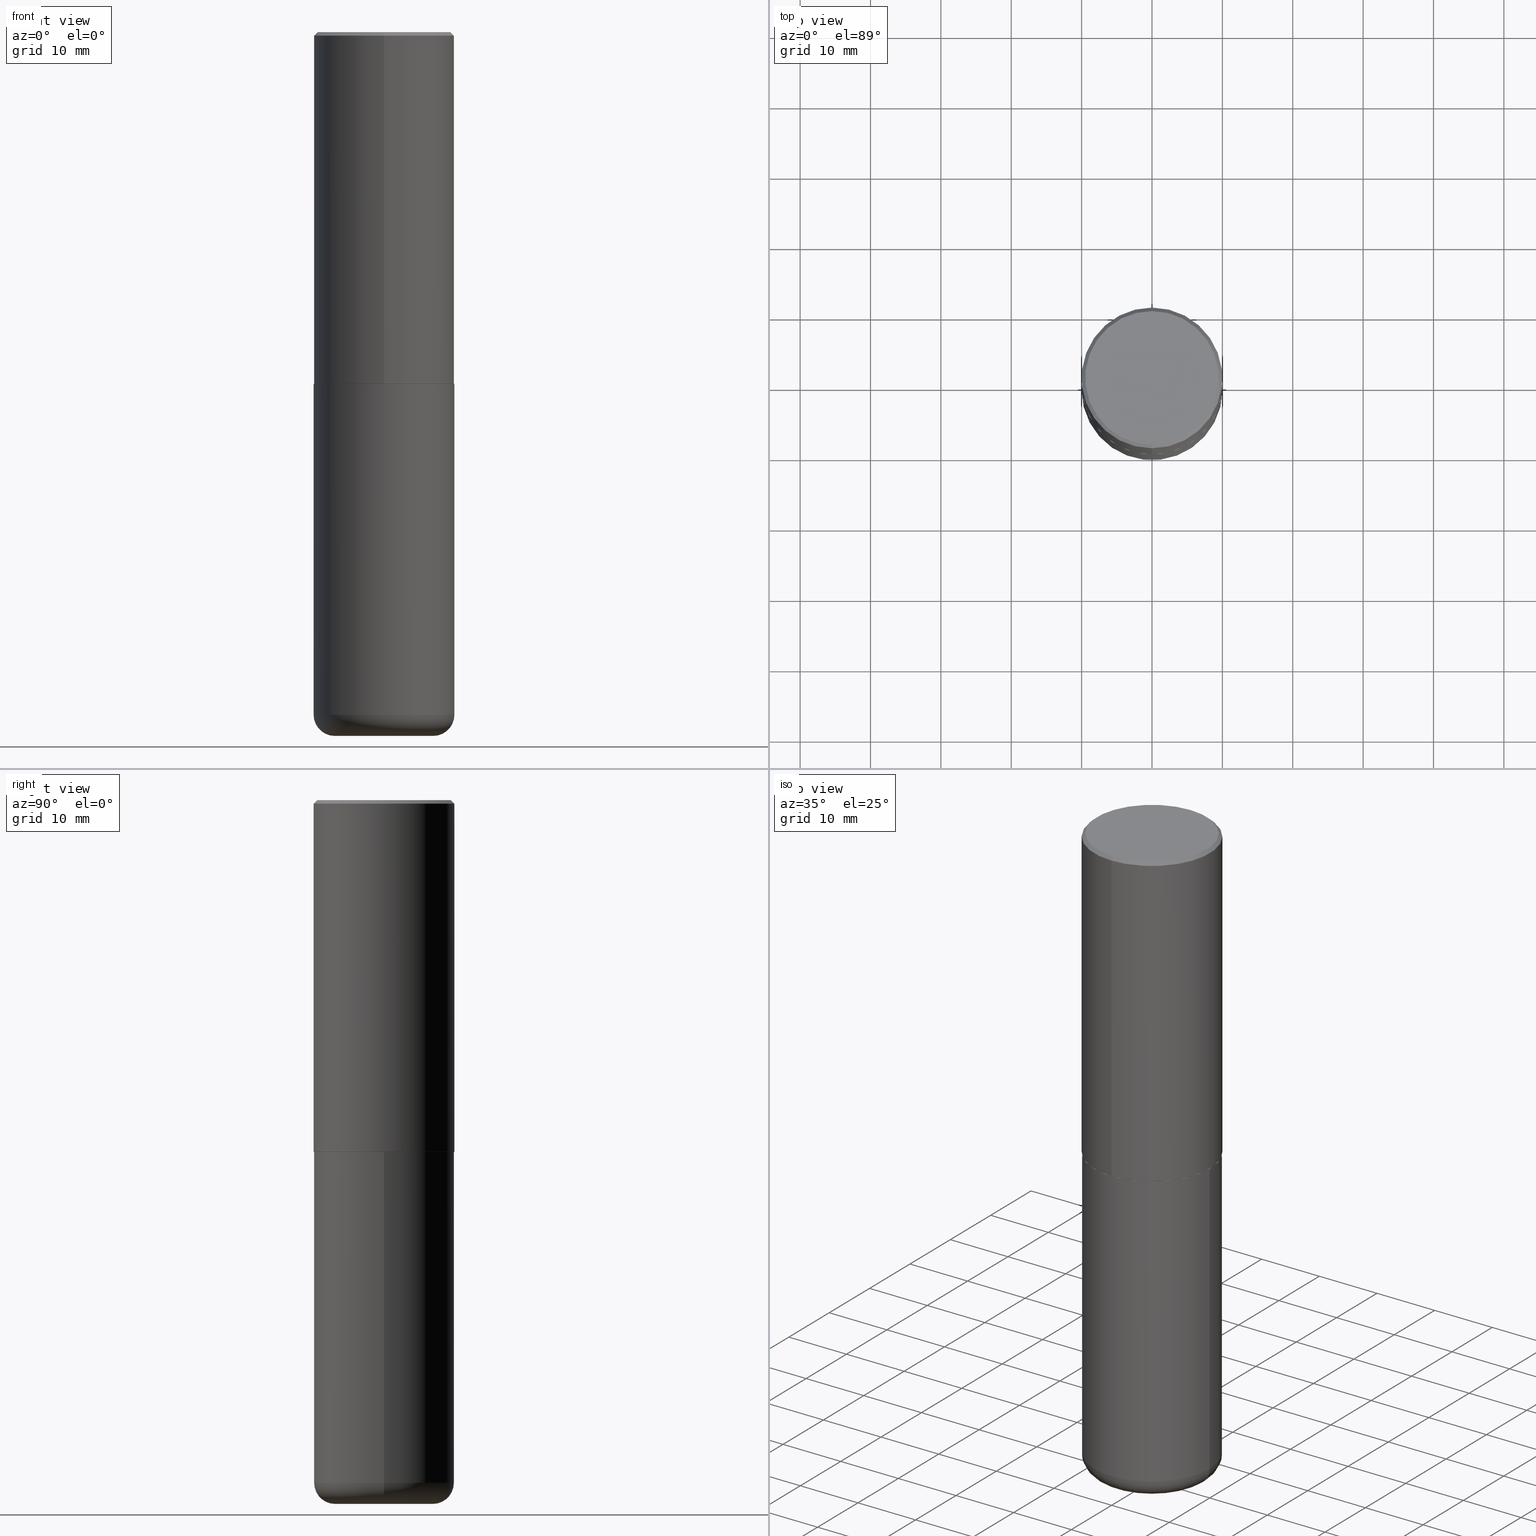
[diagram: canonical four-view strip — front | top / right | iso, engineering-drawing reading convention]
A machine part, canonical four-view strip (front | top / right | iso — engineering-drawing reading convention). The complete STEP part file that produces these views, byte-faithful:
ISO-10303-21;
HEADER;
FILE_DESCRIPTION (( 'STEP AP203' ),
    '1' );
FILE_NAME ('74648.STEP',
    '2024-03-06T15:50:53',
    ( '' ),
    ( '' ),
    'SwSTEP 2.0',
    'SolidWorks 2023',
    '' );
FILE_SCHEMA (( 'CONFIG_CONTROL_DESIGN' ));
ENDSEC;

DATA;
#1 = ORIENTED_EDGE ( 'NONE', *, *, #263, .T. ) ;
#2 = ADVANCED_FACE ( 'NONE', ( #123 ), #378, .F. ) ;
#3 = LINE ( 'NONE', #74, #402 ) ;
#4 = FACE_OUTER_BOUND ( 'NONE', #84, .T. ) ;
#5 = AXIS2_PLACEMENT_3D ( 'NONE', #409, #278, #216 ) ;
#6 = LOCAL_TIME ( 10, 50, 53.00000000000000000, #256 ) ;
#7 = ORIENTED_EDGE ( 'NONE', *, *, #218, .F. ) ;
#8 = PRODUCT_RELATED_PRODUCT_CATEGORY ( 'detail', '', ( #351 ) ) ;
#9 = CARTESIAN_POINT ( 'NONE',  ( 2.797406750687515181E-15, 0.3937000000000001609, -1.373224176831512065E-15 ) ) ;
#10 = DIRECTION ( 'NONE',  ( 1.000000000000000000, -6.982962677686268288E-15, 4.883557194083112901E-29 ) ) ;
#11 = AXIS2_PLACEMENT_3D ( 'NONE', #24, #377, #340 ) ;
#12 = ADVANCED_FACE ( 'NONE', ( #4 ), #156, .T. ) ;
#13 = CARTESIAN_POINT ( 'NONE',  ( 9.339000823940418668E-29, -1.333361808490808928E-14, -3.818900000000000183 ) ) ;
#14 = EDGE_LOOP ( 'NONE', ( #304, #341, #73, #308 ) ) ;
#15 = CARTESIAN_POINT ( 'NONE',  ( 4.818695749097162682E-29, -6.866120884157559141E-15, -1.968500000000000361 ) ) ;
#16 = ORIENTED_EDGE ( 'NONE', *, *, #195, .T. ) ;
#17 = CARTESIAN_POINT ( 'NONE',  ( 4.816247846760815671E-29, -6.862632887772413316E-15, -1.967500000000000027 ) ) ;
#18 = AXIS2_PLACEMENT_3D ( 'NONE', #175, #148, #54 ) ;
#19 = DIRECTION ( 'NONE',  ( -6.982962677686265133E-15, -1.000000000000000000, 3.478288761986584267E-15 ) ) ;
#20 = DIRECTION ( 'NONE',  ( -2.447902336346030930E-29, 3.487996385144809755E-15, 1.000000000000000000 ) ) ;
#21 = CALENDAR_DATE ( 2024, 6, 3 ) ;
#22 = DIRECTION ( 'NONE',  ( -2.447902336346030930E-29, 3.487996385144809755E-15, 1.000000000000000000 ) ) ;
#23 = AXIS2_PLACEMENT_3D ( 'NONE', #15, #40, #43 ) ;
#24 = CARTESIAN_POINT ( 'NONE',  ( 2.609533152651357803E-15, 0.3737000000000000322, -1.336129256402902755E-15 ) ) ;
#25 = EDGE_CURVE ( 'NONE', #173, #300, #34, .T. ) ;
#26 = DIRECTION ( 'NONE',  ( 2.447902336346030930E-29, -3.487996385144809755E-15, -1.000000000000000000 ) ) ;
#27 = SECURITY_CLASSIFICATION_LEVEL ( 'unclassified' ) ;
#28 = ORIENTED_EDGE ( 'NONE', *, *, #96, .F. ) ;
#29 = CARTESIAN_POINT ( 'NONE',  ( 4.813905344975441835E-29, -6.872981015512731707E-15, -1.968500000000000139 ) ) ;
#30 = APPLICATION_PROTOCOL_DEFINITION ( 'international standard', 'config_control_design', 1994, #184 ) ;
#31 = EDGE_CURVE ( 'NONE', #228, #99, #3, .T. ) ;
#32 = DIRECTION ( 'NONE',  ( 0.000000000000000000, 0.000000000000000000, 1.000000000000000000 ) ) ;
#33 = AXIS2_PLACEMENT_3D ( 'NONE', #249, #22, #185 ) ;
#34 = LINE ( 'NONE', #286, #205 ) ;
#35 = ORIENTED_EDGE ( 'NONE', *, *, #103, .T. ) ;
#36 = PERSON_AND_ORGANIZATION ( #257, #321 ) ;
#37 = DIRECTION ( 'NONE',  ( 6.982962677686265133E-15, 1.000000000000000000, -3.491137977679279424E-15 ) ) ;
#38 = AXIS2_PLACEMENT_3D ( 'NONE', #331, #70, #197 ) ;
#39 = APPROVAL ( #385, 'UNSPECIFIED' ) ;
#40 = DIRECTION ( 'NONE',  ( -2.447902336346030930E-29, 3.487996385144809755E-15, 1.000000000000000000 ) ) ;
#41 = CARTESIAN_POINT ( 'NONE',  ( -0.2756000000000000116, -1.137536230515325427E-14, -3.818900000000000183 ) ) ;
#42 = CC_DESIGN_PERSON_AND_ORGANIZATION_ASSIGNMENT ( #415, #183, ( #111 ) ) ;
#43 = DIRECTION ( 'NONE',  ( -6.982962677686265133E-15, -1.000000000000000000, 3.478288761986584267E-15 ) ) ;
#44 = AXIS2_PLACEMENT_3D ( 'NONE', #400, #177, #299 ) ;
#45 = ORIENTED_EDGE ( 'NONE', *, *, #204, .T. ) ;
#46 = DIRECTION ( 'NONE',  ( -1.000000000000000000, 7.105427357601005014E-15, 0.000000000000000000 ) ) ;
#47 = VERTEX_POINT ( 'NONE', #102 ) ;
#48 = CARTESIAN_POINT ( 'NONE',  ( -0.2756000000000000116, -1.116195879274560421E-14, -3.937000000000000277 ) ) ;
#49 = ORIENTED_EDGE ( 'NONE', *, *, #31, .F. ) ;
#50 = DIRECTION ( 'NONE',  ( 1.000000000000000000, -6.982962677686267499E-15, 0.000000000000000000 ) ) ;
#51 = ADVANCED_FACE ( 'NONE', ( #361 ), #265, .F. ) ;
#52 = ORIENTED_EDGE ( 'NONE', *, *, #122, .T. ) ;
#53 = CC_DESIGN_APPROVAL ( #193, ( #152 ) ) ;
#54 = DIRECTION ( 'NONE',  ( 6.982962677686265133E-15, 1.000000000000000000, -3.491137977679279424E-15 ) ) ;
#55 = CALENDAR_DATE ( 2024, 6, 3 ) ;
#56 = CARTESIAN_POINT ( 'NONE',  ( -2.700978061722651252E-15, -0.3937000000000001054, -0.01999999999999870978 ) ) ;
#57 = PERSON_AND_ORGANIZATION ( #257, #321 ) ;
#58 = ADVANCED_FACE ( 'NONE', ( #325 ), #155, .T. ) ;
#59 = DIRECTION ( 'NONE',  ( 1.000000000000000000, -6.982962677686265133E-15, 0.000000000000000000 ) ) ;
#60 = AXIS2_PLACEMENT_3D ( 'NONE', #306, #92, #179 ) ;
#61 = EDGE_LOOP ( 'NONE', ( #243, #225, #264, #82 ) ) ;
#62 = CARTESIAN_POINT ( 'NONE',  ( 4.895804672692082949E-31, -6.975992770289649092E-17, -0.02000000000000008715 ) ) ;
#63 = APPROVAL_STATUS ( 'not_yet_approved' ) ;
#64 = EDGE_LOOP ( 'NONE', ( #373, #337, #68, #206 ) ) ;
#65 = PERSON_AND_ORGANIZATION ( #257, #321 ) ;
#66 = PERSON_AND_ORGANIZATION ( #257, #321 ) ;
#67 = AXIS2_PLACEMENT_3D ( 'NONE', #396, #112, #151 ) ;
#68 = ORIENTED_EDGE ( 'NONE', *, *, #31, .T. ) ;
#69 = MECHANICAL_CONTEXT ( 'NONE', #289, 'mechanical' ) ;
#70 = DIRECTION ( 'NONE',  ( 2.438088387897960049E-29, -3.491481338843145188E-15, -1.000000000000000000 ) ) ;
#71 = VERTEX_POINT ( 'NONE', #413 ) ;
#72 = CC_DESIGN_PERSON_AND_ORGANIZATION_ASSIGNMENT ( #224, #352, ( #111 ) ) ;
#73 = ORIENTED_EDGE ( 'NONE', *, *, #375, .T. ) ;
#74 = CARTESIAN_POINT ( 'NONE',  ( 0.3937000000000000499, -2.749192406205083217E-15, 1.919750796630860172E-29 ) ) ;
#75 = AXIS2_PLACEMENT_3D ( 'NONE', #266, #170, #203 ) ;
#76 = DIRECTION ( 'NONE',  ( -2.445468806185136877E-29, 3.491481338843145188E-15, 1.000000000000000000 ) ) ;
#77 = CYLINDRICAL_SURFACE ( 'NONE', #75, 0.3937000000000001609 ) ;
#78 = DIRECTION ( 'NONE',  ( 4.937700262164543309E-15, 0.7071067811865444641, -0.7071067811865503483 ) ) ;
#79 = ORIENTED_EDGE ( 'NONE', *, *, #362, .F. ) ;
#80 = APPROVAL_PERSON_ORGANIZATION ( #66, #344, #319 ) ;
#81 = CARTESIAN_POINT ( 'NONE',  ( 9.627810689950883669E-29, -1.374596203102546341E-14, -3.937000000000000277 ) ) ;
#82 = ORIENTED_EDGE ( 'NONE', *, *, #283, .F. ) ;
#83 = DIRECTION ( 'NONE',  ( -6.982962677686265133E-15, -1.000000000000000000, 3.491137977679279424E-15 ) ) ;
#84 = EDGE_LOOP ( 'NONE', ( #386, #230, #219, #16 ) ) ;
#85 = CARTESIAN_POINT ( 'NONE',  ( 4.816247846760815671E-29, -6.862632887772413316E-15, -1.967500000000000027 ) ) ;
#86 = AXIS2_PLACEMENT_3D ( 'NONE', #29, #153, #59 ) ;
#87 = DATE_TIME_ROLE ( 'classification_date' ) ;
#88 = DIRECTION ( 'NONE',  ( -2.445468806185136597E-29, 3.491481338843145583E-15, 1.000000000000000000 ) ) ;
#89 = EDGE_CURVE ( 'NONE', #401, #71, #209, .T. ) ;
#90 = FACE_OUTER_BOUND ( 'NONE', #239, .T. ) ;
#91 = DATE_AND_TIME ( #21, #200 ) ;
#92 = DIRECTION ( 'NONE',  ( 2.438088387897960049E-29, -3.491481338843145188E-15, -1.000000000000000000 ) ) ;
#93 = SHAPE_DEFINITION_REPRESENTATION ( #188, #163 ) ;
#94 = CIRCLE ( 'NONE', #250, 0.1180999999999999966 ) ;
#95 = CARTESIAN_POINT ( 'NONE',  ( -2.749192406205036674E-15, -0.3937000000000070998, -1.967499999999998694 ) ) ;
#96 = EDGE_CURVE ( 'NONE', #355, #401, #369, .T. ) ;
#97 = DATE_AND_TIME ( #55, #383 ) ;
#98 = EDGE_LOOP ( 'NONE', ( #45, #143, #330, #104 ) ) ;
#99 = VERTEX_POINT ( 'NONE', #169 ) ;
#100 = DATE_AND_TIME ( #357, #290 ) ;
#101 = AXIS2_PLACEMENT_3D ( 'NONE', #119, #109, #336 ) ;
#102 = CARTESIAN_POINT ( 'NONE',  ( -0.3937000000000000499, -1.053621133422057529E-14, -3.818900000000000183 ) ) ;
#103 = EDGE_CURVE ( 'NONE', #150, #47, #94, .T. ) ;
#104 = ORIENTED_EDGE ( 'NONE', *, *, #324, .F. ) ;
#105 = DIRECTION ( 'NONE',  ( -2.445468806185136597E-29, 3.491481338843145583E-15, 1.000000000000000000 ) ) ;
#106 = VERTEX_POINT ( 'NONE', #370 ) ;
#107 = MANIFOLD_SOLID_BREP ( 'Body-Move/Copy2[2]', #234 ) ;
#108 = EDGE_CURVE ( 'NONE', #150, #291, #295, .T. ) ;
#109 = DIRECTION ( 'NONE',  ( -2.445468806185136597E-29, 3.491481338843145583E-15, 1.000000000000000000 ) ) ;
#110 = CIRCLE ( 'NONE', #33, 0.3737000000000000322 ) ;
#111 = PRODUCT_DEFINITION_FORMATION_WITH_SPECIFIED_SOURCE ( 'ANY', '', #351, .NOT_KNOWN. ) ;
#112 = DIRECTION ( 'NONE',  ( -2.447902336346030930E-29, 3.487996385144809755E-15, 1.000000000000000000 ) ) ;
#113 = DIRECTION ( 'NONE',  ( -2.447902336346030930E-29, 3.487996385144809360E-15, 1.000000000000000000 ) ) ;
#114 = VERTEX_POINT ( 'NONE', #294 ) ;
#115 = DIRECTION ( 'NONE',  ( -2.445468806185136597E-29, 3.491481338843145583E-15, 1.000000000000000000 ) ) ;
#116 = AXIS2_PLACEMENT_3D ( 'NONE', #81, #115, #236 ) ;
#117 = AXIS2_PLACEMENT_3D ( 'NONE', #407, #348, #19 ) ;
#118 = ORIENTED_EDGE ( 'NONE', *, *, #267, .T. ) ;
#119 = CARTESIAN_POINT ( 'NONE',  ( 9.339000823940418668E-29, -1.333361808490808928E-14, -3.818900000000000183 ) ) ;
#120 = FACE_OUTER_BOUND ( 'NONE', #254, .T. ) ;
#121 = CARTESIAN_POINT ( 'NONE',  ( 0.2756000000000000116, -1.567046654499579837E-14, -3.937000000000000277 ) ) ;
#122 = EDGE_CURVE ( 'NONE', #106, #99, #273, .T. ) ;
#123 = FACE_OUTER_BOUND ( 'NONE', #262, .T. ) ;
#124 = VECTOR ( 'NONE', #76, 39.37007874015748143 ) ;
#125 = APPROVAL_DATE_TIME ( #353, #39 ) ;
#126 = CC_DESIGN_SECURITY_CLASSIFICATION ( #152, ( #111 ) ) ;
#127 = PLANE ( 'NONE',  #11 ) ;
#128 = DIRECTION ( 'NONE',  ( 1.000000000000000000, -6.982962677686273021E-15, 0.000000000000000000 ) ) ;
#129 = PERSON_AND_ORGANIZATION ( #257, #321 ) ;
#130 = DIRECTION ( 'NONE',  ( 1.000000000000000000, -6.982962677686265922E-15, 4.876176775795935793E-29 ) ) ;
#131 = CONICAL_SURFACE ( 'NONE', #18, 0.3937000000000000499, 0.7853981633974476129 ) ;
#132 = ADVANCED_FACE ( 'NONE', ( #372 ), #411, .T. ) ;
#133 = AXIS2_PLACEMENT_3D ( 'NONE', #323, #32, #226 ) ;
#134 = ORIENTED_EDGE ( 'NONE', *, *, #332, .T. ) ;
#135 = COORDINATED_UNIVERSAL_TIME_OFFSET ( 5, 0, .BEHIND. ) ;
#136 = ORIENTED_EDGE ( 'NONE', *, *, #362, .T. ) ;
#137 = PERSON_AND_ORGANIZATION_ROLE ( 'design_owner' ) ;
#138 = APPROVAL_ROLE ( '' ) ;
#139 = CC_DESIGN_PERSON_AND_ORGANIZATION_ASSIGNMENT ( #57, #354, ( #152 ) ) ;
#140 = EDGE_LOOP ( 'NONE', ( #232, #270, #399, #49 ) ) ;
#141 = CONICAL_SURFACE ( 'NONE', #5, 0.3926999999999999935, 0.7853981633974141952 ) ;
#142 = CARTESIAN_POINT ( 'NONE',  ( 0.000000000000000000, 0.000000000000000000, 0.000000000000000000 ) ) ;
#143 = ORIENTED_EDGE ( 'NONE', *, *, #218, .T. ) ;
#144 = FACE_OUTER_BOUND ( 'NONE', #384, .T. ) ;
#145 = DIRECTION ( 'NONE',  ( -2.447902336346030930E-29, 3.487996385144809755E-15, 1.000000000000000000 ) ) ;
#146 = AXIS2_PLACEMENT_3D ( 'NONE', #85, #20, #381 ) ;
#147 = ORIENTED_EDGE ( 'NONE', *, *, #25, .F. ) ;
#148 = DIRECTION ( 'NONE',  ( 2.447902336346030930E-29, -3.487996385144809755E-15, -1.000000000000000000 ) ) ;
#149 = ADVANCED_FACE ( 'NONE', ( #302 ), #77, .T. ) ;
#150 = VERTEX_POINT ( 'NONE', #48 ) ;
#151 = DIRECTION ( 'NONE',  ( -6.982962677686265133E-15, -1.000000000000000000, 3.478288761986584267E-15 ) ) ;
#152 = SECURITY_CLASSIFICATION ( '', '', #27 ) ;
#153 = DIRECTION ( 'NONE',  ( -2.445468806185136597E-29, 3.491481338843145583E-15, 1.000000000000000000 ) ) ;
#154 = CARTESIAN_POINT ( 'NONE',  ( 9.339000823940418668E-29, -1.333361808490808928E-14, -3.818900000000000183 ) ) ;
#155 = CYLINDRICAL_SURFACE ( 'NONE', #363, 0.3937000000000000499 ) ;
#156 = CONICAL_SURFACE ( 'NONE', #358, 0.3937000000000000499, 0.7853981633974476129 ) ;
#157 = LINE ( 'NONE', #248, #240 ) ;
#158 = CARTESIAN_POINT ( 'NONE',  ( 2.679362779428220707E-15, 0.3737000000000000322, -1.368794263677189641E-15 ) ) ;
#159 = EDGE_CURVE ( 'NONE', #114, #173, #284, .T. ) ;
#160 = ORIENTED_EDGE ( 'NONE', *, *, #293, .F. ) ;
#161 = CALENDAR_DATE ( 2024, 6, 3 ) ;
#162 = EDGE_CURVE ( 'NONE', #47, #106, #269, .T. ) ;
#163 = ADVANCED_BREP_SHAPE_REPRESENTATION ( '74648', ( #259, #107, #133 ), #214 ) ;
#164 = LENGTH_MEASURE_WITH_UNIT ( LENGTH_MEASURE( 0.02539999999999999897 ), #276 );
#165 = VECTOR ( 'NONE', #113, 39.37007874015748143 ) ;
#166 = AXIS2_PLACEMENT_3D ( 'NONE', #380, #414, #189 ) ;
#167 = CARTESIAN_POINT ( 'NONE',  ( 4.895804672692082949E-31, -6.975992770289649092E-17, -0.02000000000000008715 ) ) ;
#168 = DIRECTION ( 'NONE',  ( -4.851104656540959542E-15, -0.7071067811865493491, -0.7071067811865454633 ) ) ;
#169 = CARTESIAN_POINT ( 'NONE',  ( 0.3937000000000000499, -9.622173421717814924E-15, -1.968500000000000139 ) ) ;
#170 = DIRECTION ( 'NONE',  ( -2.447902336346030930E-29, 3.487996385144809755E-15, 1.000000000000000000 ) ) ;
#171 = CIRCLE ( 'NONE', #368, 0.3937000000000000499 ) ;
#172 = AXIS2_PLACEMENT_3D ( 'NONE', #62, #192, #318 ) ;
#173 = VERTEX_POINT ( 'NONE', #297 ) ;
#174 = EDGE_CURVE ( 'NONE', #355, #251, #333, .T. ) ;
#175 = CARTESIAN_POINT ( 'NONE',  ( 4.895804672692082949E-31, -6.975992770289649092E-17, -0.02000000000000008715 ) ) ;
#176 = EDGE_LOOP ( 'NONE', ( #7, #367, #392, #389 ) ) ;
#177 = DIRECTION ( 'NONE',  ( -2.447902336346030930E-29, 3.487996385144809755E-15, 1.000000000000000000 ) ) ;
#178 = EDGE_LOOP ( 'NONE', ( #118, #52 ) ) ;
#179 = DIRECTION ( 'NONE',  ( -1.000000000000000000, 6.982962677686265922E-15, -4.876176775795935793E-29 ) ) ;
#180 = AXIS2_PLACEMENT_3D ( 'NONE', #238, #271, #10 ) ;
#181 = ORIENTED_EDGE ( 'NONE', *, *, #204, .F. ) ;
#182 = CC_DESIGN_PERSON_AND_ORGANIZATION_ASSIGNMENT ( #36, #387, ( #279 ) ) ;
#183 = PERSON_AND_ORGANIZATION_ROLE ( 'creator' ) ;
#184 = APPLICATION_CONTEXT ( 'configuration controlled 3d designs of mechanical parts and assemblies' ) ;
#185 = DIRECTION ( 'NONE',  ( -6.982962677686265922E-15, -1.000000000000000000, 3.487996385144809755E-15 ) ) ;
#186 = APPROVAL_ROLE ( '' ) ;
#187 = FACE_OUTER_BOUND ( 'NONE', #140, .T. ) ;
#188 = PRODUCT_DEFINITION_SHAPE ( 'NONE', 'NONE',  #279 ) ;
#189 = DIRECTION ( 'NONE',  ( 1.000000000000000000, -6.982962677686265922E-15, 0.000000000000000000 ) ) ;
#190 = AXIS2_PLACEMENT_3D ( 'NONE', #312, #309, #130 ) ;
#191 = TOROIDAL_SURFACE ( 'NONE', #101, 0.2756000000000000116, 0.1181000000000000105 ) ;
#192 = DIRECTION ( 'NONE',  ( -2.447902336346030930E-29, 3.487996385144809755E-15, 1.000000000000000000 ) ) ;
#193 = APPROVAL ( #215, 'UNSPECIFIED' ) ;
#194 =( NAMED_UNIT ( * ) SI_UNIT ( $, .STERADIAN. ) SOLID_ANGLE_UNIT ( ) );
#195 = EDGE_CURVE ( 'NONE', #71, #251, #171, .T. ) ;
#196 = AXIS2_PLACEMENT_3D ( 'NONE', #154, #88, #50 ) ;
#197 = DIRECTION ( 'NONE',  ( -1.000000000000000000, 6.982962677686265922E-15, -4.876176775795935793E-29 ) ) ;
#198 = VERTEX_POINT ( 'NONE', #365 ) ;
#199 = UNCERTAINTY_MEASURE_WITH_UNIT (LENGTH_MEASURE( 1.000000000000000082E-05 ), #417, 'distance_accuracy_value', 'NONE');
#200 = LOCAL_TIME ( 10, 50, 53.00000000000000000, #408 ) ;
#201 = EDGE_CURVE ( 'NONE', #47, #228, #305, .T. ) ;
#202 = CARTESIAN_POINT ( 'NONE',  ( 4.813905344975441835E-29, -6.872981015512731707E-15, -1.968500000000000139 ) ) ;
#203 = DIRECTION ( 'NONE',  ( -6.982962677686265922E-15, -1.000000000000000000, 3.487996385144809360E-15 ) ) ;
#204 = EDGE_CURVE ( 'NONE', #300, #198, #418, .T. ) ;
#205 = VECTOR ( 'NONE', #258, 39.37007874015748854 ) ;
#206 = ORIENTED_EDGE ( 'NONE', *, *, #122, .F. ) ;
#207 = DIRECTION ( 'NONE',  ( 1.000000000000000000, -6.982962677686265133E-15, 0.000000000000000000 ) ) ;
#208 = ORIENTED_EDGE ( 'NONE', *, *, #89, .F. ) ;
#209 = LINE ( 'NONE', #395, #280 ) ;
#210 = EDGE_CURVE ( 'NONE', #173, #114, #349, .T. ) ;
#211 = ORIENTED_EDGE ( 'NONE', *, *, #398, .T. ) ;
#212 = DIRECTION ( 'NONE',  ( -6.982962677686265922E-15, -1.000000000000000000, 3.487996385144809360E-15 ) ) ;
#213 = AXIS2_PLACEMENT_3D ( 'NONE', #13, #397, #292 ) ;
#214 =( GEOMETRIC_REPRESENTATION_CONTEXT ( 3 ) GLOBAL_UNCERTAINTY_ASSIGNED_CONTEXT ( ( #199 ) ) GLOBAL_UNIT_ASSIGNED_CONTEXT ( ( #417, #252, #194 ) ) REPRESENTATION_CONTEXT ( 'NONE', 'WORKASPACE' ) );
#215 = APPROVAL_STATUS ( 'not_yet_approved' ) ;
#216 = DIRECTION ( 'NONE',  ( -6.982962677686265133E-15, -1.000000000000000000, 3.478288761986584267E-15 ) ) ;
#217 = PLANE ( 'NONE',  #60 ) ;
#218 = EDGE_CURVE ( 'NONE', #198, #71, #274, .T. ) ;
#219 = ORIENTED_EDGE ( 'NONE', *, *, #89, .T. ) ;
#220 = FACE_OUTER_BOUND ( 'NONE', #61, .T. ) ;
#221 = CLOSED_SHELL ( 'NONE', ( #253, #132, #51, #58, #227, #338 ) ) ;
#222 = AXIS2_PLACEMENT_3D ( 'NONE', #313, #282, #128 ) ;
#223 = CALENDAR_DATE ( 2024, 6, 3 ) ;
#224 = PERSON_AND_ORGANIZATION ( #257, #321 ) ;
#225 = ORIENTED_EDGE ( 'NONE', *, *, #159, .T. ) ;
#226 = DIRECTION ( 'NONE',  ( 1.000000000000000000, 0.000000000000000000, 0.000000000000000000 ) ) ;
#227 = ADVANCED_FACE ( 'NONE', ( #404 ), #191, .T. ) ;
#228 = VERTEX_POINT ( 'NONE', #366 ) ;
#229 = DATE_AND_TIME ( #161, #275 ) ;
#230 = ORIENTED_EDGE ( 'NONE', *, *, #263, .F. ) ;
#231 = ORIENTED_EDGE ( 'NONE', *, *, #210, .T. ) ;
#232 = ORIENTED_EDGE ( 'NONE', *, *, #293, .T. ) ;
#233 = ADVANCED_FACE ( 'NONE', ( #144 ), #131, .T. ) ;
#234 = CLOSED_SHELL ( 'NONE', ( #311, #237, #233, #12, #149, #388, #2, #303 ) ) ;
#235 = CARTESIAN_POINT ( 'NONE',  ( -0.3937000000000000499, 2.797406750687514786E-15, -1.936584745033356735E-29 ) ) ;
#236 = DIRECTION ( 'NONE',  ( 1.000000000000000000, -6.982962677686265922E-15, 0.000000000000000000 ) ) ;
#237 = ADVANCED_FACE ( 'NONE', ( #246 ), #416, .T. ) ;
#238 = CARTESIAN_POINT ( 'NONE',  ( 9.339000823940418668E-29, -1.333361808490808928E-14, -3.818900000000000183 ) ) ;
#239 = EDGE_LOOP ( 'NONE', ( #79, #298 ) ) ;
#240 = VECTOR ( 'NONE', #379, 39.37007874015748854 ) ;
#241 = DIRECTION ( 'NONE',  ( -2.447902336346030930E-29, 3.487996385144809755E-15, 1.000000000000000000 ) ) ;
#242 = DIRECTION ( 'NONE',  ( 7.105427357601001859E-15, 1.000000000000000000, -3.491481338843145583E-15 ) ) ;
#243 = ORIENTED_EDGE ( 'NONE', *, *, #332, .F. ) ;
#244 = LINE ( 'NONE', #412, #314 ) ;
#245 = DIRECTION ( 'NONE',  ( -2.447902336346030930E-29, 3.487996385144809360E-15, 1.000000000000000000 ) ) ;
#246 = FACE_OUTER_BOUND ( 'NONE', #98, .T. ) ;
#247 = CC_DESIGN_DATE_AND_TIME_ASSIGNMENT ( #97, #87, ( #152 ) ) ;
#248 = CARTESIAN_POINT ( 'NONE',  ( 2.790301323329961110E-15, 0.3926999999999931101, -1.968500000000001693 ) ) ;
#249 = CARTESIAN_POINT ( 'NONE',  ( 1.599214952469751148E-45, -2.278708545868848433E-31, -6.533001454857425165E-17 ) ) ;
#250 = AXIS2_PLACEMENT_3D ( 'NONE', #41, #242, #46 ) ;
#251 = VERTEX_POINT ( 'NONE', #56 ) ;
#252 =( NAMED_UNIT ( * ) PLANE_ANGLE_UNIT ( ) SI_UNIT ( $, .RADIAN. ) );
#253 = ADVANCED_FACE ( 'NONE', ( #187 ), #343, .T. ) ;
#254 = EDGE_LOOP ( 'NONE', ( #231, #134, #181, #147 ) ) ;
#255 = APPROVAL_DATE_TIME ( #100, #344 ) ;
#256 = COORDINATED_UNIVERSAL_TIME_OFFSET ( 5, 0, .BEHIND. ) ;
#257 = PERSON ( 'UNSPECIFIED', 'UNSPECIFIED', 'UNSPECIFIED', ('UNSPECIFIED'), ('UNSPECIFIED'), ('UNSPECIFIED') ) ;
#258 = DIRECTION ( 'NONE',  ( -4.937700262164378437E-15, -0.7071067811865208164, 0.7071067811865739960 ) ) ;
#259 = MANIFOLD_SOLID_BREP ( 'Body-Move/Copy2[1]', #221 ) ;
#260 = CIRCLE ( 'NONE', #86, 0.3937000000000000499 ) ;
#261 = CONICAL_SURFACE ( 'NONE', #117, 0.3926999999999999935, 0.7853981633974141952 ) ;
#262 = EDGE_LOOP ( 'NONE', ( #272, #393 ) ) ;
#263 = EDGE_CURVE ( 'NONE', #401, #355, #110, .T. ) ;
#264 = ORIENTED_EDGE ( 'NONE', *, *, #25, .T. ) ;
#265 = PLANE ( 'NONE',  #38 ) ;
#266 = CARTESIAN_POINT ( 'NONE',  ( 0.000000000000000000, 0.000000000000000000, 0.000000000000000000 ) ) ;
#267 = EDGE_CURVE ( 'NONE', #99, #106, #260, .T. ) ;
#268 = DIRECTION ( 'NONE',  ( -6.982962677686265922E-15, -1.000000000000000000, 3.469453890861393601E-15 ) ) ;
#269 = LINE ( 'NONE', #235, #124 ) ;
#270 = ORIENTED_EDGE ( 'NONE', *, *, #162, .T. ) ;
#271 = DIRECTION ( 'NONE',  ( -2.445468806185136597E-29, 3.491481338843145583E-15, 1.000000000000000000 ) ) ;
#272 = ORIENTED_EDGE ( 'NONE', *, *, #210, .F. ) ;
#273 = CIRCLE ( 'NONE', #328, 0.3937000000000000499 ) ;
#274 = LINE ( 'NONE', #9, #165 ) ;
#275 = LOCAL_TIME ( 10, 50, 53.00000000000000000, #135 ) ;
#276 =( LENGTH_UNIT ( ) NAMED_UNIT ( * ) SI_UNIT ( $, .METRE. ) );
#277 = FACE_OUTER_BOUND ( 'NONE', #371, .T. ) ;
#278 = DIRECTION ( 'NONE',  ( -2.447902336346030930E-29, 3.487996385144809755E-15, 1.000000000000000000 ) ) ;
#279 = PRODUCT_DEFINITION ( 'UNKNOWN', '', #111, #394 ) ;
#280 = VECTOR ( 'NONE', #78, 39.37007874015748854 ) ;
#281 = DIRECTION ( 'NONE',  ( 1.000000000000000000, -6.982962677686265922E-15, 4.876176775795935793E-29 ) ) ;
#282 = DIRECTION ( 'NONE',  ( -6.982962677686266711E-15, -1.000000000000000000, 3.491481338843145583E-15 ) ) ;
#283 = EDGE_CURVE ( 'NONE', #198, #300, #320, .T. ) ;
#284 = CIRCLE ( 'NONE', #23, 0.3926999999999999935 ) ;
#285 = APPLICATION_PROTOCOL_DEFINITION ( 'international standard', 'config_control_design', 1994, #289 ) ;
#286 = CARTESIAN_POINT ( 'NONE',  ( -2.742209443527348687E-15, -0.3927000000000069324, -1.968499999999999028 ) ) ;
#287 = PERSON_AND_ORGANIZATION ( #257, #321 ) ;
#288 = AXIS2_PLACEMENT_3D ( 'NONE', #301, #342, #316 ) ;
#289 = APPLICATION_CONTEXT ( 'configuration controlled 3d designs of mechanical parts and assemblies' ) ;
#290 = LOCAL_TIME ( 10, 50, 53.00000000000000000, #356 ) ;
#291 = VERTEX_POINT ( 'NONE', #121 ) ;
#292 = DIRECTION ( 'NONE',  ( 1.000000000000000000, -6.982962677686267499E-15, 0.000000000000000000 ) ) ;
#293 = EDGE_CURVE ( 'NONE', #228, #47, #376, .T. ) ;
#294 = CARTESIAN_POINT ( 'NONE',  ( 2.793854037008762797E-15, 0.3926999999999931101, -1.968500000000001693 ) ) ;
#295 = CIRCLE ( 'NONE', #116, 0.2756000000000000116 ) ;
#296 = CIRCLE ( 'NONE', #166, 0.2756000000000000116 ) ;
#297 = CARTESIAN_POINT ( 'NONE',  ( -2.742209443527348687E-15, -0.3927000000000069324, -1.968499999999999028 ) ) ;
#298 = ORIENTED_EDGE ( 'NONE', *, *, #108, .F. ) ;
#299 = DIRECTION ( 'NONE',  ( -6.982962677686265922E-15, -1.000000000000000000, 3.487996385144809755E-15 ) ) ;
#300 = VERTEX_POINT ( 'NONE', #95 ) ;
#301 = CARTESIAN_POINT ( 'NONE',  ( 4.818695749097161561E-29, -6.866120884157558352E-15, -1.968500000000000139 ) ) ;
#302 = FACE_OUTER_BOUND ( 'NONE', #176, .T. ) ;
#303 = ADVANCED_FACE ( 'NONE', ( #277 ), #127, .F. ) ;
#304 = ORIENTED_EDGE ( 'NONE', *, *, #103, .F. ) ;
#305 = CIRCLE ( 'NONE', #213, 0.3937000000000000499 ) ;
#306 = CARTESIAN_POINT ( 'NONE',  ( 9.627810689950883669E-29, -1.374596203102546341E-14, -3.937000000000000277 ) ) ;
#307 = CIRCLE ( 'NONE', #172, 0.3937000000000000499 ) ;
#308 = ORIENTED_EDGE ( 'NONE', *, *, #201, .F. ) ;
#309 = DIRECTION ( 'NONE',  ( -2.445468806185136597E-29, 3.491481338843145583E-15, 1.000000000000000000 ) ) ;
#310 = APPROVAL_DATE_TIME ( #91, #193 ) ;
#311 = ADVANCED_FACE ( 'NONE', ( #120 ), #141, .T. ) ;
#312 = CARTESIAN_POINT ( 'NONE',  ( 0.000000000000000000, 0.000000000000000000, 0.000000000000000000 ) ) ;
#313 = CARTESIAN_POINT ( 'NONE',  ( 0.2756000000000000116, -1.525812259887842581E-14, -3.818900000000000183 ) ) ;
#314 = VECTOR ( 'NONE', #245, 39.37007874015748143 ) ;
#315 = CC_DESIGN_APPROVAL ( #39, ( #111 ) ) ;
#316 = DIRECTION ( 'NONE',  ( -6.982962677686265922E-15, -1.000000000000000000, 3.487996385144809360E-15 ) ) ;
#317 = EDGE_LOOP ( 'NONE', ( #136, #35, #160, #405 ) ) ;
#318 = DIRECTION ( 'NONE',  ( -6.982962677686265133E-15, -1.000000000000000000, 3.491137977679279424E-15 ) ) ;
#319 = APPROVAL_ROLE ( '' ) ;
#320 = CIRCLE ( 'NONE', #146, 0.3937000000000002720 ) ;
#321 = ORGANIZATION ( 'UNSPECIFIED', 'UNSPECIFIED', '' ) ;
#322 = DATE_TIME_ROLE ( 'creation_date' ) ;
#323 = CARTESIAN_POINT ( 'NONE',  ( 0.000000000000000000, 0.000000000000000000, 0.000000000000000000 ) ) ;
#324 = EDGE_CURVE ( 'NONE', #300, #251, #244, .T. ) ;
#325 = FACE_OUTER_BOUND ( 'NONE', #64, .T. ) ;
#326 = DIMENSIONAL_EXPONENTS ( 1.000000000000000000, 0.000000000000000000, 0.000000000000000000, 0.000000000000000000, 0.000000000000000000, 0.000000000000000000, 0.000000000000000000 ) ;
#327 = DIRECTION ( 'NONE',  ( -2.445468806185136877E-29, 3.491481338843145188E-15, 1.000000000000000000 ) ) ;
#328 = AXIS2_PLACEMENT_3D ( 'NONE', #202, #364, #207 ) ;
#329 = APPROVAL_PERSON_ORGANIZATION ( #287, #39, #138 ) ;
#330 = ORIENTED_EDGE ( 'NONE', *, *, #398, .F. ) ;
#331 = CARTESIAN_POINT ( 'NONE',  ( 4.813905344975441835E-29, -6.872981015512731707E-15, -1.968500000000000139 ) ) ;
#332 = EDGE_CURVE ( 'NONE', #114, #198, #157, .T. ) ;
#333 = LINE ( 'NONE', #339, #382 ) ;
#334 = CARTESIAN_POINT ( 'NONE',  ( 4.895804672692082949E-31, -6.975992770289649092E-17, -0.02000000000000008715 ) ) ;
#335 = AXIS2_PLACEMENT_3D ( 'NONE', #17, #145, #268 ) ;
#336 = DIRECTION ( 'NONE',  ( 1.000000000000000000, -6.982962677686268288E-15, 4.883557194083112901E-29 ) ) ;
#337 = ORIENTED_EDGE ( 'NONE', *, *, #201, .T. ) ;
#338 = ADVANCED_FACE ( 'NONE', ( #90 ), #217, .T. ) ;
#339 = CARTESIAN_POINT ( 'NONE',  ( -2.700978061722651252E-15, -0.3937000000000001054, -0.01999999999999870978 ) ) ;
#340 = DIRECTION ( 'NONE',  ( 6.982962677686265922E-15, 1.000000000000000000, -3.487996385144809360E-15 ) ) ;
#341 = ORIENTED_EDGE ( 'NONE', *, *, #108, .T. ) ;
#342 = DIRECTION ( 'NONE',  ( -2.447902336346030930E-29, 3.487996385144809360E-15, 1.000000000000000000 ) ) ;
#343 = CYLINDRICAL_SURFACE ( 'NONE', #190, 0.3937000000000000499 ) ;
#344 = APPROVAL ( #63, 'UNSPECIFIED' ) ;
#345 = COORDINATED_UNIVERSAL_TIME_OFFSET ( 5, 0, .BEHIND. ) ;
#346 = CARTESIAN_POINT ( 'NONE',  ( 0.000000000000000000, 0.000000000000000000, 0.000000000000000000 ) ) ;
#347 = CARTESIAN_POINT ( 'NONE',  ( -2.632373081744936315E-15, -0.3737000000000000322, 1.238134234580041113E-15 ) ) ;
#348 = DIRECTION ( 'NONE',  ( -2.447902336346030930E-29, 3.487996385144809755E-15, 1.000000000000000000 ) ) ;
#349 = CIRCLE ( 'NONE', #67, 0.3926999999999999935 ) ;
#350 = CC_DESIGN_APPROVAL ( #344, ( #279 ) ) ;
#351 = PRODUCT ( '74648', '74648', '', ( #69 ) ) ;
#352 = PERSON_AND_ORGANIZATION_ROLE ( 'design_supplier' ) ;
#353 = DATE_AND_TIME ( #223, #6 ) ;
#354 = PERSON_AND_ORGANIZATION_ROLE ( 'classification_officer' ) ;
#355 = VERTEX_POINT ( 'NONE', #347 ) ;
#356 = COORDINATED_UNIVERSAL_TIME_OFFSET ( 5, 0, .BEHIND. ) ;
#357 = CALENDAR_DATE ( 2024, 6, 3 ) ;
#358 = AXIS2_PLACEMENT_3D ( 'NONE', #167, #26, #37 ) ;
#359 = CC_DESIGN_PERSON_AND_ORGANIZATION_ASSIGNMENT ( #65, #137, ( #351 ) ) ;
#360 = ORIENTED_EDGE ( 'NONE', *, *, #174, .T. ) ;
#361 = FACE_OUTER_BOUND ( 'NONE', #178, .T. ) ;
#362 = EDGE_CURVE ( 'NONE', #291, #150, #296, .T. ) ;
#363 = AXIS2_PLACEMENT_3D ( 'NONE', #142, #105, #281 ) ;
#364 = DIRECTION ( 'NONE',  ( -2.445468806185136597E-29, 3.491481338843145583E-15, 1.000000000000000000 ) ) ;
#365 = CARTESIAN_POINT ( 'NONE',  ( 2.797406750687540030E-15, 0.3936999999999934441, -1.967500000000001359 ) ) ;
#366 = CARTESIAN_POINT ( 'NONE',  ( 0.3937000000000000499, -1.608281049111317408E-14, -3.818900000000000183 ) ) ;
#367 = ORIENTED_EDGE ( 'NONE', *, *, #283, .T. ) ;
#368 = AXIS2_PLACEMENT_3D ( 'NONE', #334, #241, #83 ) ;
#369 = CIRCLE ( 'NONE', #44, 0.3737000000000000322 ) ;
#370 = CARTESIAN_POINT ( 'NONE',  ( -0.3937000000000000499, -7.305892799522895709E-15, -1.968500000000000139 ) ) ;
#371 = EDGE_LOOP ( 'NONE', ( #1, #410 ) ) ;
#372 = FACE_OUTER_BOUND ( 'NONE', #317, .T. ) ;
#373 = ORIENTED_EDGE ( 'NONE', *, *, #162, .F. ) ;
#374 = DIRECTION ( 'NONE',  ( -2.447902336346030930E-29, 3.487996385144809755E-15, 1.000000000000000000 ) ) ;
#375 = EDGE_CURVE ( 'NONE', #291, #228, #403, .T. ) ;
#376 = CIRCLE ( 'NONE', #196, 0.3937000000000000499 ) ;
#377 = DIRECTION ( 'NONE',  ( 2.447902336346030930E-29, -3.487996385144809360E-15, -1.000000000000000000 ) ) ;
#378 = PLANE ( 'NONE',  #288 ) ;
#379 = DIRECTION ( 'NONE',  ( 5.024295867787889629E-15, 0.7071067811865257013, 0.7071067811865691111 ) ) ;
#380 = CARTESIAN_POINT ( 'NONE',  ( 9.627810689950883669E-29, -1.374596203102546341E-14, -3.937000000000000277 ) ) ;
#381 = DIRECTION ( 'NONE',  ( -6.982962677686265922E-15, -1.000000000000000000, 3.469453890861393601E-15 ) ) ;
#382 = VECTOR ( 'NONE', #168, 39.37007874015748854 ) ;
#383 = LOCAL_TIME ( 10, 50, 53.00000000000000000, #345 ) ;
#384 = EDGE_LOOP ( 'NONE', ( #28, #360, #211, #208 ) ) ;
#385 = APPROVAL_STATUS ( 'not_yet_approved' ) ;
#386 = ORIENTED_EDGE ( 'NONE', *, *, #174, .F. ) ;
#387 = PERSON_AND_ORGANIZATION_ROLE ( 'creator' ) ;
#388 = ADVANCED_FACE ( 'NONE', ( #220 ), #261, .T. ) ;
#389 = ORIENTED_EDGE ( 'NONE', *, *, #195, .F. ) ;
#390 = AXIS2_PLACEMENT_3D ( 'NONE', #346, #374, #212 ) ;
#391 = APPROVAL_PERSON_ORGANIZATION ( #129, #193, #186 ) ;
#392 = ORIENTED_EDGE ( 'NONE', *, *, #324, .T. ) ;
#393 = ORIENTED_EDGE ( 'NONE', *, *, #159, .F. ) ;
#394 = DESIGN_CONTEXT ( 'detailed design', #184, 'design' ) ;
#395 = CARTESIAN_POINT ( 'NONE',  ( 2.749192406205083217E-15, 0.3936999999999999389, -0.02000000000000146105 ) ) ;
#396 = CARTESIAN_POINT ( 'NONE',  ( 4.818695749097162682E-29, -6.866120884157559141E-15, -1.968500000000000361 ) ) ;
#397 = DIRECTION ( 'NONE',  ( -2.445468806185136597E-29, 3.491481338843145583E-15, 1.000000000000000000 ) ) ;
#398 = EDGE_CURVE ( 'NONE', #251, #71, #307, .T. ) ;
#399 = ORIENTED_EDGE ( 'NONE', *, *, #267, .F. ) ;
#400 = CARTESIAN_POINT ( 'NONE',  ( 1.599214952469751148E-45, -2.278708545868848433E-31, -6.533001454857425165E-17 ) ) ;
#401 = VERTEX_POINT ( 'NONE', #158 ) ;
#402 = VECTOR ( 'NONE', #327, 39.37007874015748143 ) ;
#403 = CIRCLE ( 'NONE', #222, 0.1180999999999999966 ) ;
#404 = FACE_OUTER_BOUND ( 'NONE', #14, .T. ) ;
#405 = ORIENTED_EDGE ( 'NONE', *, *, #375, .F. ) ;
#406 = CC_DESIGN_DATE_AND_TIME_ASSIGNMENT ( #229, #322, ( #279 ) ) ;
#407 = CARTESIAN_POINT ( 'NONE',  ( 4.818695749097162682E-29, -6.866120884157559141E-15, -1.968500000000000361 ) ) ;
#408 = COORDINATED_UNIVERSAL_TIME_OFFSET ( 5, 0, .BEHIND. ) ;
#409 = CARTESIAN_POINT ( 'NONE',  ( 4.818695749097162682E-29, -6.866120884157559141E-15, -1.968500000000000361 ) ) ;
#410 = ORIENTED_EDGE ( 'NONE', *, *, #96, .T. ) ;
#411 = TOROIDAL_SURFACE ( 'NONE', #180, 0.2756000000000000116, 0.1181000000000000105 ) ;
#412 = CARTESIAN_POINT ( 'NONE',  ( -2.749192406205084005E-15, -0.3937000000000001609, 1.373224176831512065E-15 ) ) ;
#413 = CARTESIAN_POINT ( 'NONE',  ( 2.749192406205083217E-15, 0.3936999999999999389, -0.02000000000000146105 ) ) ;
#414 = DIRECTION ( 'NONE',  ( -2.445468806185136597E-29, 3.491481338843145583E-15, 1.000000000000000000 ) ) ;
#415 = PERSON_AND_ORGANIZATION ( #257, #321 ) ;
#416 = CYLINDRICAL_SURFACE ( 'NONE', #390, 0.3937000000000001609 ) ;
#417 =( CONVERSION_BASED_UNIT ( 'INCH', #164 ) LENGTH_UNIT ( ) NAMED_UNIT ( #326 ) );
#418 = CIRCLE ( 'NONE', #335, 0.3937000000000002720 ) ;
ENDSEC;
END-ISO-10303-21;
